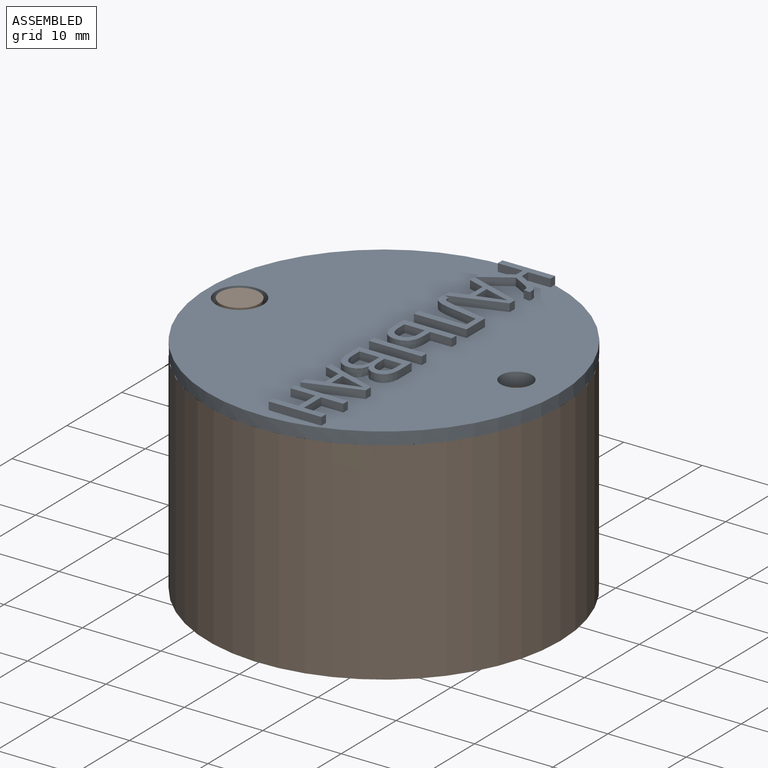
[diagram: assembled view]
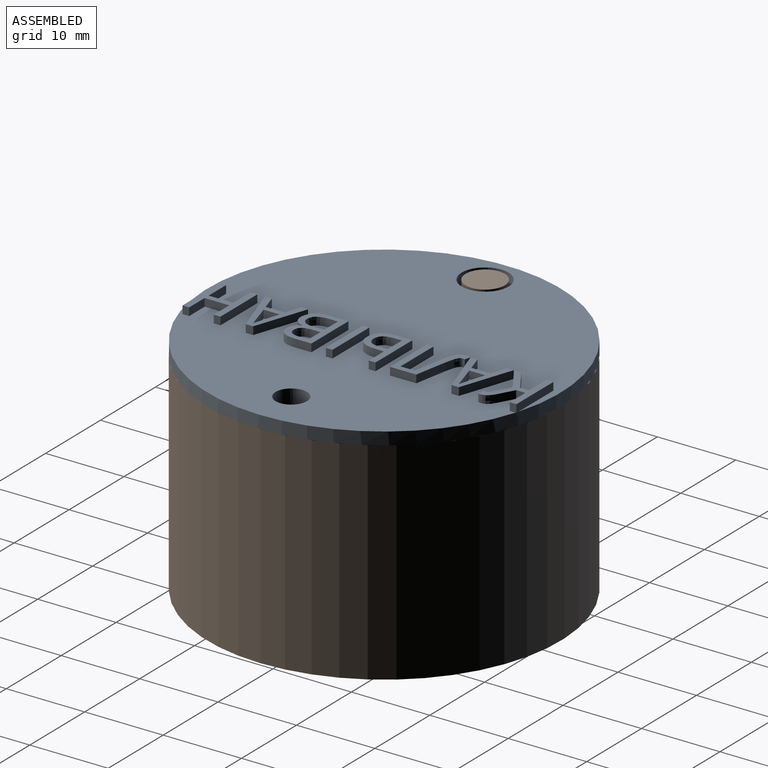
[diagram: assembled view, second angle]
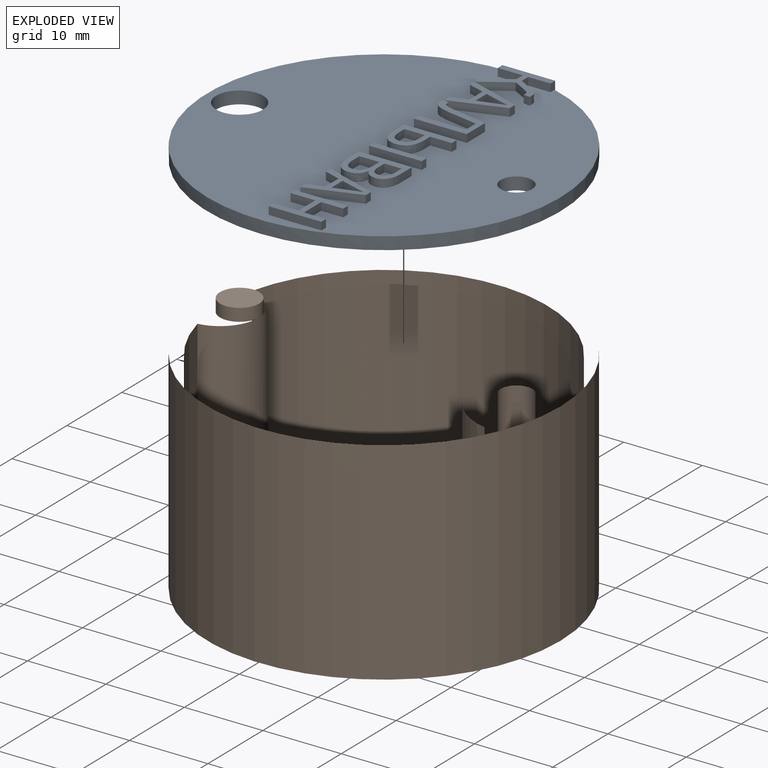
[diagram: exploded view]
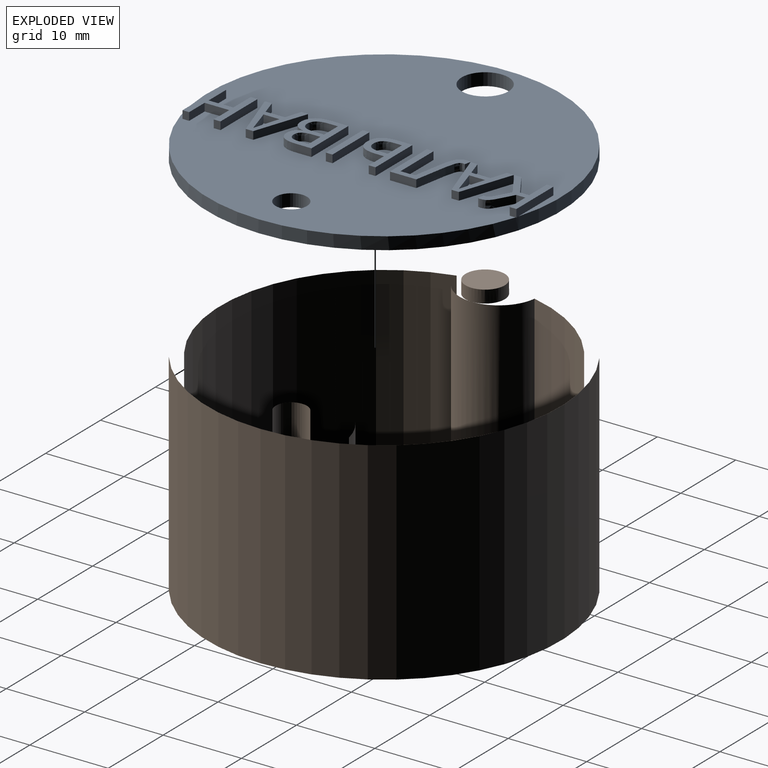
[diagram: exploded view, second angle]
ASSEMBLY  parts=2 mates=2
PART A: 122 faces, bbox 45x45x2.6 mm
  f0: plane 45x45mm, normal (0,0,1), area 1427.7mm2, adj f1,f2,f3,f6,f7,f8,f9,f10
  f1: cylinder r=2mm len=4mm, axis (0,0,-1), area 20.1mm2, adj f0,f4
  f2: cylinder r=3mm len=6mm, axis (0,0,-1), area 30.2mm2, adj f0,f4
  f3: cylinder r=22.5mm len=45mm, axis (0,0,-1), area 226.2mm2, adj f0,f4,f5
  f4: plane 45x45mm, normal (0,0,-1), area 1549.6mm2, adj f1,f2,f3
  f5: plane 0.37x0.11mm, normal (0,0,-1), area 0mm2, adj f3,f6,f22
  f6: plane 6.72x1mm, normal (-1,0,0), area 6.7mm2, adj f0,f5,f7,f22,f23
  f7: plane 1x0.85mm, normal (0,-1,0), area 0.9mm2, adj f0,f6,f8,f23
  f8: plane 3.19x1mm, normal (1,0,0), area 3.2mm2, adj f0,f7,f9,f23
  f9: plane 1.16x1mm, normal (0,-1,0), area 1.2mm2, adj f0,f8,f10,f23
  f10: plane 3.19x2.07mm, normal (-0.84,-0.54,0), area 3.8mm2, adj f0,f9,f11,f23
  f11: plane 1x0.92mm, normal (0,-1,0), area 0.9mm2, adj f0,f10,f12,f23
  f12: plane 3.59x2.3mm, normal (0.84,0.54,0), area 4.3mm2, adj f0,f11,f13,f23
  f13: plane 1.6x1mm, normal (0.88,-0.48,0), area 1.8mm2, adj f0,f12,f14,f23
  f14: extruded ~1x0.89mm, area 1.3mm2, adj f0,f13,f15,f23
  f15: extruded ~1x0.24mm, area 0.2mm2, adj f0,f14,f16,f23
  f16: plane 1x0.8mm, normal (0.98,-0.18,0), area 0.8mm2, adj f0,f15,f17,f23
  f17: extruded ~1x0.38mm, area 0.4mm2, adj f0,f16,f18,f23
  f18: extruded ~1.51x1.25mm, area 2.1mm2, adj f0,f17,f19,f23
  f19: plane 1.71x1mm, normal (-0.88,0.48,0), area 2mm2, adj f0,f18,f20,f23
  f20: plane 1.17x1mm, normal (0,1,0), area 1.2mm2, adj f0,f19,f21,f23
  f21: plane 2.83x1mm, normal (1,0,0), area 2.8mm2, adj f0,f20,f22,f23
  f22: plane 1x0.85mm, normal (0,1,0), area 0.9mm2, adj f0,f5,f6,f21,f23
  f23: plane 6.85x5mm, normal (0,0,1), area 12.9mm2, adj f6,f7,f8,f9,f10,f11,f12,f13
  f24: plane 2.04x1mm, normal (0,1,0), area 2mm2, adj f25,f37,f38,f39
  f25: plane 1.03x1mm, normal (0.95,-0.31,0), area 1.1mm2, adj f24,f26,f38,f39
  f26: extruded ~2.28x1mm, area 2.4mm2, adj f25,f27,f38,f39
  f27: plane 1x0.04mm, normal (0,-1,0), area 0mm2, adj f26,f28,f38,f39
  f28: extruded ~2.28x1mm, area 2.4mm2, adj f27,f37,f38,f39
  f29: plane 2.06x1mm, normal (-0.95,-0.3,0), area 2.2mm2, adj f0,f30,f36,f38
  f30: plane 1x0.9mm, normal (0,-1,0), area 0.9mm2, adj f0,f29,f31,f38
  f31: plane 6.72x2.29mm, normal (0.95,0.32,0), area 7.1mm2, adj f0,f30,f32,f38
  f32: plane 1x0.94mm, normal (0,1,0), area 0.9mm2, adj f0,f31,f33,f38
  f33: plane 6.72x2.29mm, normal (-0.95,0.32,0), area 7.1mm2, adj f0,f32,f34,f38
  f34: plane 1x0.86mm, normal (0,-1,0), area 0.9mm2, adj f0,f33,f35,f38
  f35: plane 2.06x1mm, normal (0.95,-0.3,0), area 2.2mm2, adj f0,f34,f36,f38
  f36: plane 2.46x1mm, normal (0,-1,0), area 2.5mm2, adj f0,f29,f35,f38
  f37: plane 1.03x1mm, normal (-0.95,-0.3,0), area 1.1mm2, adj f24,f28,f38,f39
  f38: plane 6.72x5.51mm, normal (0,0,1), area 12mm2, adj f24,f25,f26,f27,f28,f29,f30,f31
  f39: plane 3.3x2.04mm, normal (0,0,1), area 3.3mm2, adj f24,f25,f26,f27,f28,f37
  f40: extruded ~1x0.58mm, area 0.6mm2, adj f0,f41,f51,f52
  f41: extruded ~2.52x1.62mm, area 3.3mm2, adj f0,f40,f42,f52
  f42: extruded ~3.61x1mm, area 3.7mm2, adj f0,f41,f43,f52
  f43: plane 1.84x1mm, normal (0,-1,0), area 1.8mm2, adj f0,f42,f44,f52
  f44: plane 6.01x1mm, normal (-1,0,0), area 6mm2, adj f0,f43,f45,f52
  f45: plane 1x0.84mm, normal (0,-1,0), area 0.8mm2, adj f0,f44,f46,f52
  f46: plane 6.72x1mm, normal (1,0,0), area 6.7mm2, adj f0,f45,f47,f52
  f47: plane 3.36x1mm, normal (0,1,0), area 3.4mm2, adj f0,f46,f48,f52
  f48: extruded ~4.23x1mm, area 4.3mm2, adj f0,f47,f49,f52
  f49: extruded ~1.81x1mm, area 2.2mm2, adj f0,f48,f50,f52
  f50: extruded ~1x0.29mm, area 0.3mm2, adj f0,f49,f51,f52
  f51: plane 1x0.78mm, normal (-0.98,0.22,0), area 0.8mm2, adj f0,f40,f50,f52
  f52: plane 6.84x5.53mm, normal (0,0,1), area 13mm2, adj f40,f41,f42,f43,f44,f45,f46,f47
  f53: plane 6.72x1mm, normal (-1,0,0), area 6.7mm2, adj f0,f54,f64,f65
  f54: plane 1.91x1mm, normal (0,-1,0), area 1.9mm2, adj f0,f53,f55,f65
  f55: extruded ~2.48x2.06mm, area 3.7mm2, adj f0,f54,f56,f65
  f56: extruded ~2.49x1.91mm, area 3.6mm2, adj f0,f55,f57,f65
  f57: plane 1.05x1mm, normal (0,1,0), area 1mm2, adj f0,f56,f58,f65
  f58: plane 2.75x1mm, normal (1,0,0), area 2.8mm2, adj f0,f57,f64,f65
  f59: plane 1x0.95mm, normal (0,1,0), area 1mm2, adj f60,f63,f65,f66
  f60: plane 2.6x1mm, normal (1,0,0), area 2.6mm2, adj f59,f61,f65,f66
  f61: plane 1x0.93mm, normal (0,-1,0), area 0.9mm2, adj f60,f62,f65,f66
  f62: extruded ~1.77x1.24mm, area 2.5mm2, adj f61,f63,f65,f66
  f63: extruded ~1.74x1.36mm, area 2.5mm2, adj f59,f62,f65,f66
  f64: plane 1x0.85mm, normal (0,1,0), area 0.9mm2, adj f0,f53,f58,f65
  f65: plane 6.72x4.39mm, normal (0,0,1), area 11.8mm2, adj f53,f54,f55,f56,f57,f58,f59,f60
  f66: plane 2.7x2.6mm, normal (0,0,1), area 6.3mm2, adj f59,f60,f61,f62,f63
  f67: plane 6.72x1mm, normal (-1,0,0), area 6.7mm2, adj f0,f68,f70,f71
  f68: plane 1x0.84mm, normal (0,-1,0), area 0.8mm2, adj f0,f67,f69,f71
  f69: plane 6.72x1mm, normal (1,0,0), area 6.7mm2, adj f0,f68,f70,f71
  f70: plane 1x0.84mm, normal (0,1,0), area 0.8mm2, adj f0,f67,f69,f71
  f71: plane 6.72x0.84mm, normal (0,0,1), area 5.7mm2, adj f67,f68,f69,f70
  f72: plane 6.72x1mm, normal (-1,0,0), area 6.7mm2, adj f0,f73,f89,f90
  f73: plane 2.15x1mm, normal (0,-1,0), area 2.1mm2, adj f0,f72,f74,f90
  f74: extruded ~2.55x1.97mm, area 3.6mm2, adj f0,f73,f75,f90
  f75: extruded ~1.61x1.38mm, area 2.3mm2, adj f0,f74,f76,f90
  f76: plane 1x0.05mm, normal (1,0,0), area 0mm2, adj f0,f75,f77,f90
  f77: extruded ~1.46x1mm, area 1.9mm2, adj f0,f76,f78,f90
  f78: extruded ~2.31x1.64mm, area 3.2mm2, adj f0,f77,f89,f90
  f79: plane 1.17x1mm, normal (0,1,0), area 1.2mm2, adj f80,f87,f90,f92
  f80: plane 2.53x1mm, normal (1,0,0), area 2.5mm2, adj f79,f81,f90,f92
  f81: plane 1.17x1mm, normal (0,-1,0), area 1.2mm2, adj f80,f82,f90,f92
  f82: extruded ~1.84x1.21mm, area 2.5mm2, adj f81,f87,f90,f92
  f83: plane 1x1mm, normal (0,1,0), area 1mm2, adj f84,f88,f90,f91
  f84: plane 2.19x1mm, normal (1,0,0), area 2.2mm2, adj f83,f85,f90,f91
  f85: plane 1.04x1mm, normal (0,-1,0), area 1mm2, adj f84,f86,f90,f91
  f86: extruded ~1.59x1.08mm, area 2.2mm2, adj f85,f88,f90,f91
  f87: extruded ~1.84x1.32mm, area 2.6mm2, adj f79,f82,f90,f92
  f88: extruded ~1.62x1.11mm, area 2.2mm2, adj f83,f86,f90,f91
  f89: plane 2x1mm, normal (0,1,0), area 2mm2, adj f0,f72,f78,f90
  f90: plane 6.72x4.7mm, normal (0,0,1), area 15.9mm2, adj f72,f73,f74,f75,f76,f77,f78,f79
  f91: plane 2.62x2.19mm, normal (0,0,1), area 5.2mm2, adj f83,f84,f85,f86,f88
  f92: plane 3.01x2.53mm, normal (0,0,1), area 6.8mm2, adj f79,f80,f81,f82,f87
  f93: plane 2.04x1mm, normal (0,1,0), area 2mm2, adj f94,f106,f107,f108
  f94: plane 1.03x1mm, normal (0.95,-0.31,0), area 1.1mm2, adj f93,f95,f107,f108
  f95: extruded ~2.28x1mm, area 2.4mm2, adj f94,f96,f107,f108
  f96: plane 1x0.04mm, normal (0,-1,0), area 0mm2, adj f95,f97,f107,f108
  f97: extruded ~2.28x1mm, area 2.4mm2, adj f96,f106,f107,f108
  f98: plane 2.06x1mm, normal (-0.95,-0.3,0), area 2.2mm2, adj f0,f99,f105,f107
  f99: plane 1x0.9mm, normal (0,-1,0), area 0.9mm2, adj f0,f98,f100,f107
  f100: plane 6.72x2.29mm, normal (0.95,0.32,0), area 7.1mm2, adj f0,f99,f101,f107
  f101: plane 1x0.94mm, normal (0,1,0), area 0.9mm2, adj f0,f100,f102,f107
  f102: plane 6.72x2.29mm, normal (-0.95,0.32,0), area 7.1mm2, adj f0,f101,f103,f107
  f103: plane 1x0.86mm, normal (0,-1,0), area 0.9mm2, adj f0,f102,f104,f107
  f104: plane 2.06x1mm, normal (0.95,-0.3,0), area 2.2mm2, adj f0,f103,f105,f107
  f105: plane 2.46x1mm, normal (0,-1,0), area 2.5mm2, adj f0,f98,f104,f107
  f106: plane 1.03x1mm, normal (-0.95,-0.3,0), area 1.1mm2, adj f93,f97,f107,f108
  f107: plane 6.72x5.51mm, normal (0,0,1), area 12mm2, adj f93,f94,f95,f96,f97,f98,f99,f100
  f108: plane 3.3x2.04mm, normal (0,0,1), area 3.3mm2, adj f93,f94,f95,f96,f97,f106
  f109: plane 6.72x1mm, normal (-1,0,0), area 6.7mm2, adj f0,f110,f120,f121
  f110: plane 1x0.85mm, normal (0,-1,0), area 0.9mm2, adj f0,f109,f111,f121
  f111: plane 3.17x1mm, normal (1,0,0), area 3.2mm2, adj f0,f110,f112,f121
  f112: plane 3.14x1mm, normal (0,-1,0), area 3.1mm2, adj f0,f111,f113,f121
  f113: plane 3.17x1mm, normal (-1,0,0), area 3.2mm2, adj f0,f112,f114,f121
  f114: plane 1x0.84mm, normal (0,-1,0), area 0.8mm2, adj f0,f113,f115,f121
  f115: plane 6.72x1mm, normal (1,0,0), area 6.7mm2, adj f0,f114,f116,f121
  f116: plane 1x0.84mm, normal (0,1,0), area 0.8mm2, adj f0,f115,f117,f121
  f117: plane 2.82x1mm, normal (-1,0,0), area 2.8mm2, adj f0,f116,f118,f121
  f118: plane 3.14x1mm, normal (0,1,0), area 3.1mm2, adj f0,f117,f119,f121
  f119: plane 2.82x1mm, normal (1,0,0), area 2.8mm2, adj f0,f118,f120,f121
  f120: plane 1x0.85mm, normal (0,1,0), area 0.9mm2, adj f0,f109,f119,f121
  f121: plane 6.72x4.84mm, normal (0,0,1), area 13.7mm2, adj f109,f110,f111,f112,f113,f114,f115,f116
PART B: 14 faces, bbox 55x55x38.6 mm
  f0: cylinder r=2mm len=22.4mm, axis (0,0,-1), area 281.5mm2, adj f5,f11
  f1: plane 41.8x39.26mm, normal (0,0,1), area 1219.5mm2, adj f2,f3,f7,f10
  f2: cylinder r=20.9mm len=39.26mm, axis (0,0,1), area 1310mm2, adj f1,f5,f7,f10
  f3: cylinder r=20.9mm len=39.26mm, axis (0,0,1), area 1310mm2, adj f1,f5,f7,f10
  f4: plane 45x45mm, normal (0,0,-1), area 1540.2mm2, adj f6,f12
  f5: plane 45x45mm, normal (0,0,1), area 338.8mm2, adj f0,f2,f3,f6,f7,f8,f10
  f6: cylinder r=22.5mm len=45mm, axis (0,0,1), area 3817mm2, adj f4,f5
  f7: cylinder r=5mm len=25.4mm, axis (0,0,-1), area 368.5mm2, adj f1,f2,f3,f5
  f8: cylinder r=2.5mm len=5mm, axis (0,0,-1), area 25.1mm2, adj f5,f9
  f9: plane 15x15mm, normal (0,0,1), area 39.3mm2, adj f8
  f10: cylinder r=9mm len=25.4mm, axis (0,0,-1), area 619mm2, adj f1,f2,f3,f5
  f11: plane 4x4mm, normal (0,0,1), area 12.6mm2, adj f0
  f12: cylinder r=4mm len=8mm, axis (0,0,-1), area 75.4mm2, adj f4,f13
  f13: plane 8x8mm, normal (0,0,-1), area 50.3mm2, adj f12
PLACE A rot(axis=(0,0,-1),90deg) t=(-2.4,-4.51,30.96)mm
PLACE B t=(-2.4,-4.51,3.96)mm fixed
MATE cylindrical B.f0 <-> A.f1  axis (0,0,1) through (14.5,-4.51,30.96)mm
MATE planar B.f0 <-> A.f1  axis (0,0,1) through (14.5,-4.51,30.96)mm
